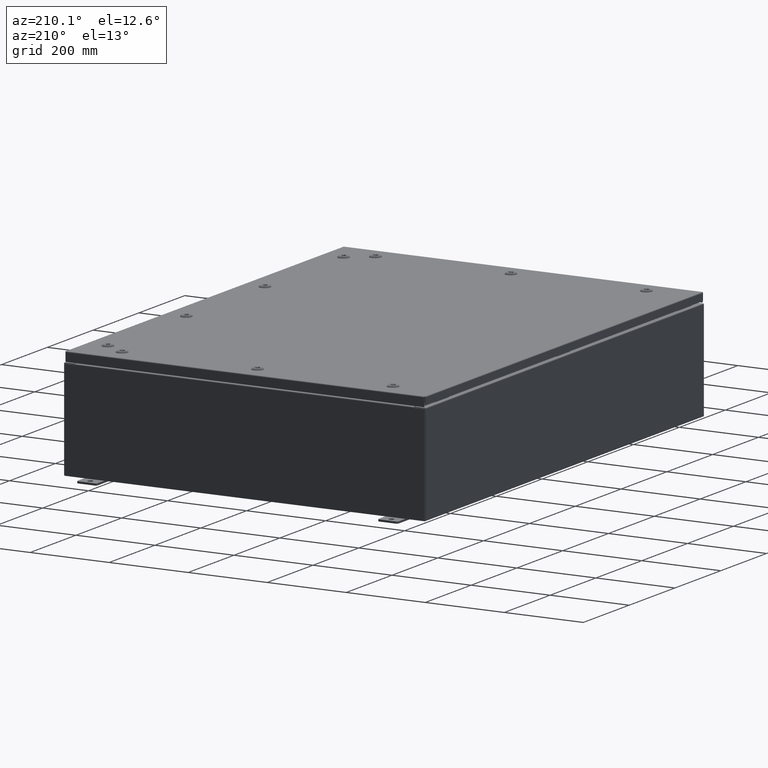
[diagram: clean part render]
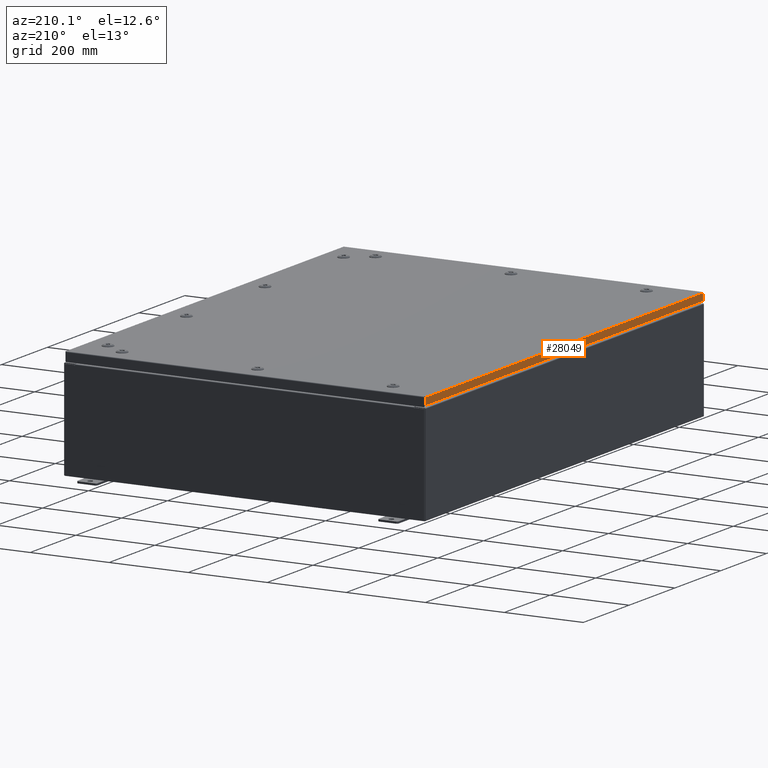
[diagram: same view with one face highlighted and labeled with its STEP entity id]
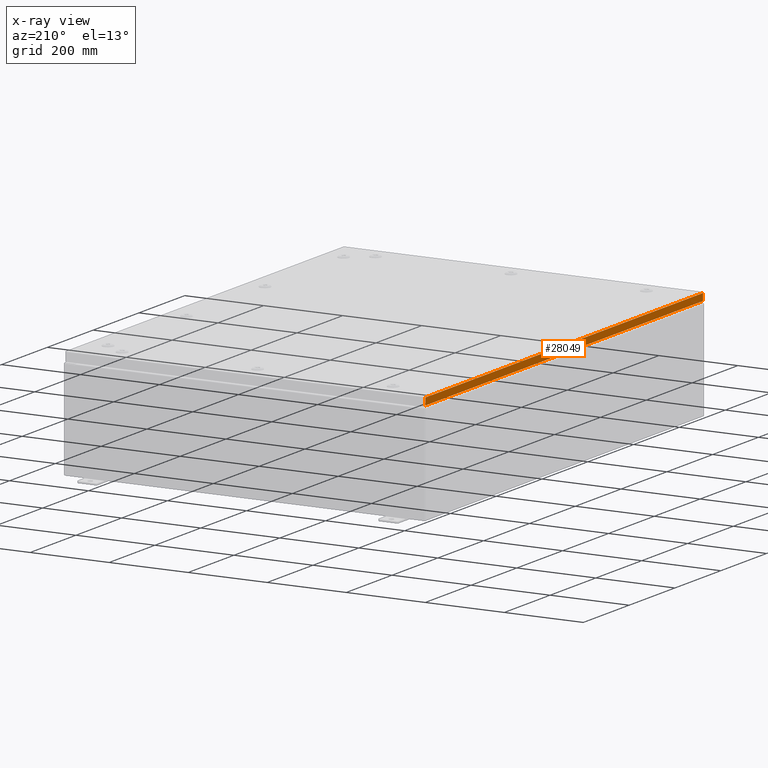
[diagram: x-ray of the same camera — body ghosted, the highlighted face saturated]
A machine part, auxiliary view. The second image highlights one B-rep face of the part: STEP entity #28049.
The next image is the same camera in x-ray: the body ghosted, the highlighted face saturated — about 0% of this face is hidden behind the body in this view.
In plain terms, the highlighted planar face has unit normal (1, -0, -0).
Its self-contained STEP definition (entity closure, byte-faithful):
#1031 = DIRECTION ( 'NONE',  ( -3.034122441942816500E-015, 6.982962677686267500E-015, -1.000000000000000000 ) ) ;
#1630 = VERTEX_POINT ( 'NONE', #4252 ) ;
#2397 = ORIENTED_EDGE ( 'NONE', *, *, #3571, .F. ) ;
#2481 = DIRECTION ( 'NONE',  ( -3.034122441942816500E-015, 6.982962677686267500E-015, -1.000000000000000000 ) ) ;
#3308 = EDGE_CURVE ( 'NONE', #21553, #42757, #20734, .T. ) ;
#3318 = PLANE ( 'NONE',  #53049 ) ;
#3571 = EDGE_CURVE ( 'NONE', #39498, #1630, #51412, .T. ) ;
#4252 = CARTESIAN_POINT ( 'NONE',  ( -17.93750000000000000, -23.84865786437626800, -0.7949999999999996000 ) ) ;
#5671 = CARTESIAN_POINT ( 'NONE',  ( -17.93750000000000000, -23.93750000000000000, -0.08770000000000004200 ) ) ;
#7164 = EDGE_CURVE ( 'NONE', #21553, #39498, #60398, .T. ) ;
#12671 = VECTOR ( 'NONE', #18505, 39.37007874015748100 ) ;
#12765 = EDGE_CURVE ( 'NONE', #1630, #42757, #28490, .T. ) ;
#15071 = ORIENTED_EDGE ( 'NONE', *, *, #7164, .F. ) ;
#18505 = DIRECTION ( 'NONE',  ( 9.129935853499365900E-017, 1.000000000000000000, 1.226835130313977200E-016 ) ) ;
#20734 = LINE ( 'NONE', #50301, #59698 ) ;
#20773 = CARTESIAN_POINT ( 'NONE',  ( -17.93749999999999600, 23.84865786437627500, -0.7949999999999938200 ) ) ;
#20835 = FACE_OUTER_BOUND ( 'NONE', #43749, .T. ) ;
#21091 = CARTESIAN_POINT ( 'NONE',  ( -17.93749999999999600, 23.84865786437627100, -0.08770000000000659200 ) ) ;
#21513 = VECTOR ( 'NONE', #1031, 39.37007874015748100 ) ;
#21553 = VERTEX_POINT ( 'NONE', #21091 ) ;
#24732 = CARTESIAN_POINT ( 'NONE',  ( -17.93749999999999600, 1.637682243721441900E-015, 5.468538495836084400E-014 ) ) ;
#26514 = ORIENTED_EDGE ( 'NONE', *, *, #12765, .F. ) ;
#27538 = CARTESIAN_POINT ( 'NONE',  ( -17.93750000000000000, -23.84865786437627100, -0.07469999999999976700 ) ) ;
#28049 = ADVANCED_FACE ( 'NONE', ( #20835 ), #3318, .F. ) ;
#28490 = LINE ( 'NONE', #50254, #12671 ) ;
#30089 = DIRECTION ( 'NONE',  ( -3.034122441942816500E-015, 0.0000000000000000000, -1.000000000000000000 ) ) ;
#32206 = VECTOR ( 'NONE', #32420, 39.37007874015748100 ) ;
#32420 = DIRECTION ( 'NONE',  ( -9.129935853499285800E-017, -1.000000000000000000, 1.369490378024904800E-016 ) ) ;
#39498 = VERTEX_POINT ( 'NONE', #57163 ) ;
#42757 = VERTEX_POINT ( 'NONE', #20773 ) ;
#43749 = EDGE_LOOP ( 'NONE', ( #15071, #46149, #26514, #2397 ) ) ;
#46149 = ORIENTED_EDGE ( 'NONE', *, *, #3308, .T. ) ;
#50254 = CARTESIAN_POINT ( 'NONE',  ( -17.93750000000000000, -23.93750000000000000, -0.7949999999999997100 ) ) ;
#50301 = CARTESIAN_POINT ( 'NONE',  ( -17.93749999999999600, 23.84865786437627100, 2.212196727382094500E-013 ) ) ;
#51412 = LINE ( 'NONE', #27538, #21513 ) ;
#53049 = AXIS2_PLACEMENT_3D ( 'NONE', #24732, #61828, #30089 ) ;
#57163 = CARTESIAN_POINT ( 'NONE',  ( -17.93750000000000000, -23.84865786437626800, -0.08770000000000334500 ) ) ;
#59698 = VECTOR ( 'NONE', #2481, 39.37007874015748100 ) ;
#60398 = LINE ( 'NONE', #5671, #32206 ) ;
#61828 = DIRECTION ( 'NONE',  ( 1.000000000000000000, -9.129935853499329000E-017, -3.034122441942816500E-015 ) ) ;